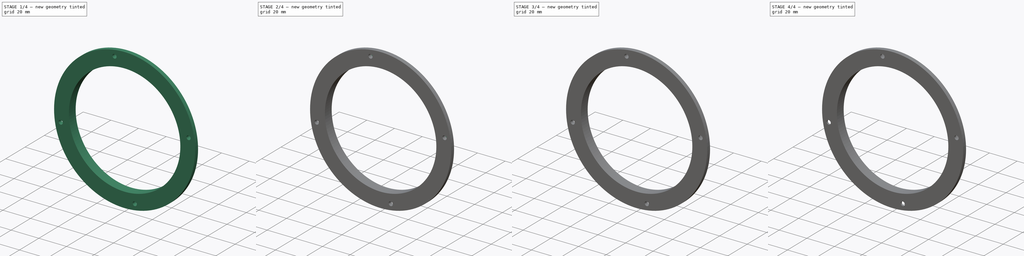
[diagram: build sequence overview — one tinted view per stage of 4, left to right]
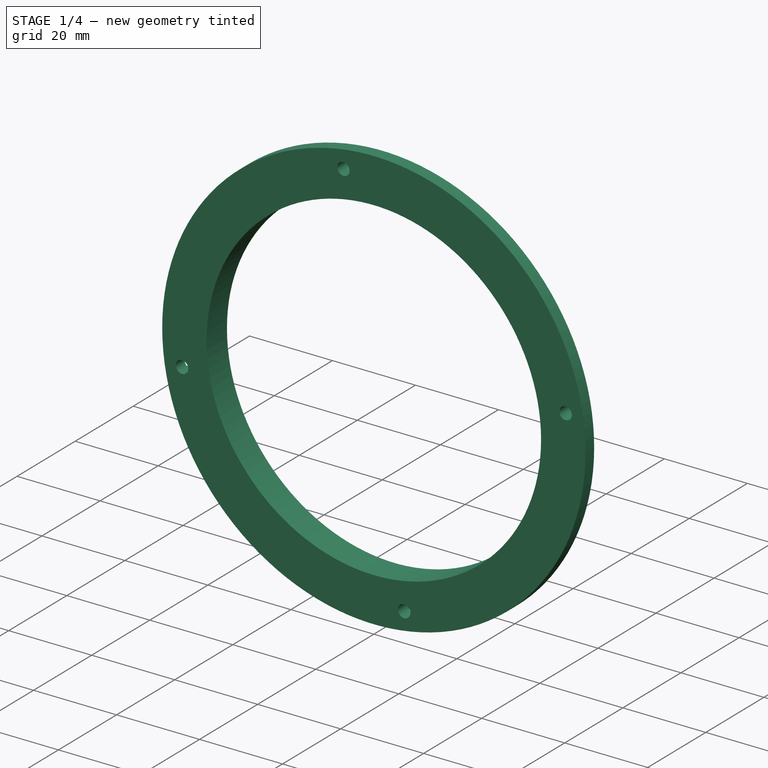
[diagram: stage 1 of 4 — iso view after this stage's code; geometry added in this stage tinted green]
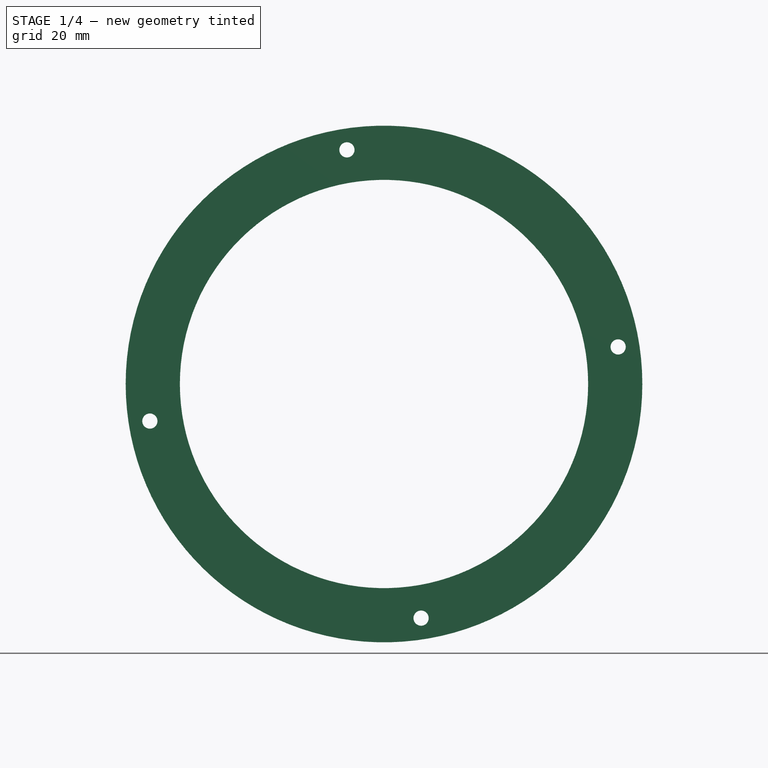
[diagram: stage 1 of 4 — front view after this stage's code; geometry added in this stage tinted green]
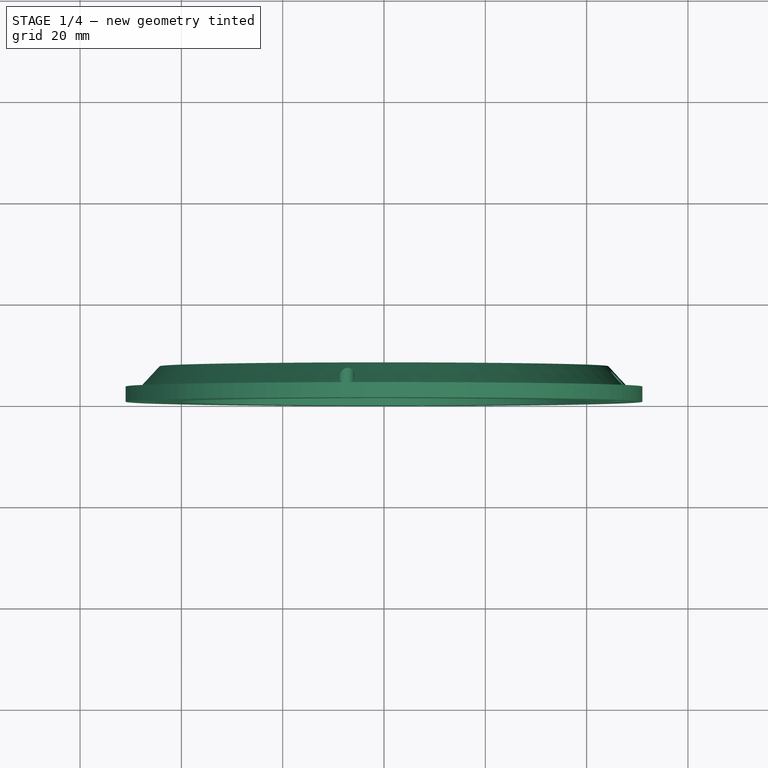
[diagram: stage 1 of 4 — top view after this stage's code; geometry added in this stage tinted green]
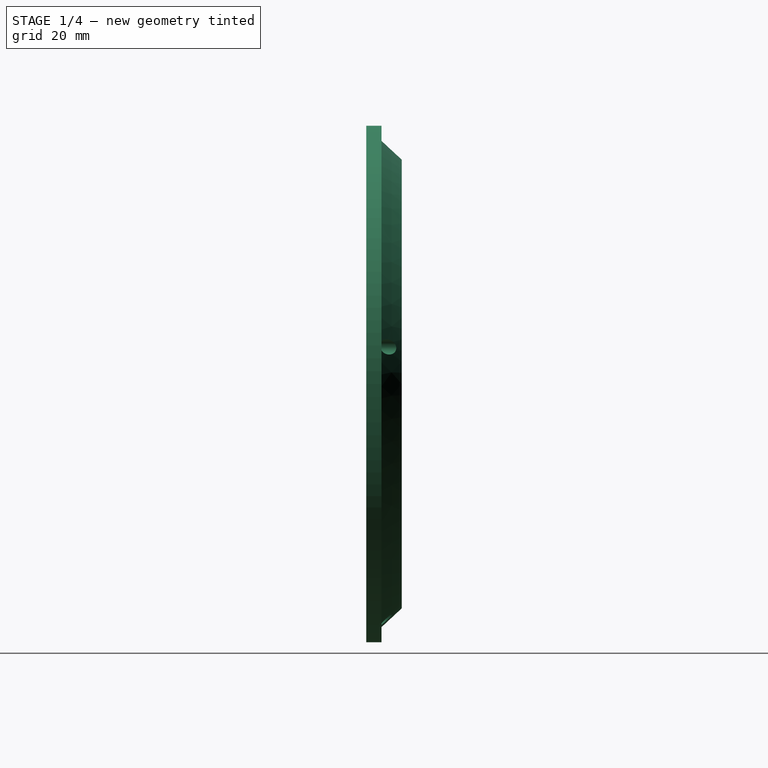
[diagram: stage 1 of 4 — right view after this stage's code; geometry added in this stage tinted green]
FCSTD DOCUMENT  (FreeCAD 0.16R6706 (Git))
Label: EndStopSensorMount
License: All rights reserved
LicenseURL: http://en.wikipedia.org/wiki/All_rights_reserved
objects: Sketcher::SketchObject×5, PartDesign::Pocket×4, PartDesign::PolarPattern×4, PartDesign::Chamfer×4, PartDesign::Revolution×1
note: 23 computed .brp shape members not serialized (recipe doc carries the construction recipe); baked Part::Feature solids carry a one-line shape summary decoded from their .brp

FEATURE [Sketcher::SketchObject] Sketch
  sketch-geometry (6):
    g0: LineSegment StartX=51 StartY=3 StartZ=0 EndX=51 EndY=0 EndZ=0
    g1: LineSegment StartX=51 StartY=0 StartZ=0 EndX=40.3 EndY=0 EndZ=0
    g2: LineSegment StartX=40.3 StartY=0 StartZ=0 EndX=40.3 EndY=7 EndZ=0
    g3: LineSegment StartX=40.3 StartY=7 StartZ=0 EndX=44.3 EndY=7 EndZ=0
    g4: LineSegment StartX=44.3 StartY=7 StartZ=0 EndX=48 EndY=3 EndZ=0
    g5: LineSegment StartX=48 StartY=3 StartZ=0 EndX=51 EndY=3 EndZ=0
  constraints (18):
    c: Coincident(g1,g2)
    c: Horizontal(g1)
    c: Vertical(g0)
    c: Vertical(g2)
    c: PointOnObject(g0,g-1)
    c: Coincident(g2,g3)
    c: Coincident(g3,g4)
    c: Coincident(g4,g5)
    c: Coincident(g5,g0)
    c: DistanceY(g1,g2) = 7
    c: Horizontal(g3)
    c: Coincident(g1,g0)
    c: DistanceY(g0,g0) = 3
    c: Horizontal(g5)
    c: DistanceX(g2,g3) = 4
    c: DistanceX(g-1,g0) = 51
    c: DistanceX(g1,g0) = 10.7
    c: DistanceX(g4,g0) = 3
FEATURE [PartDesign::Revolution] Revolution
  Angle = 360
  Axis = (0,1,0)
  Base = (0,0,0)
  Midplane = true
  ReferenceAxis = -> Sketch [V_Axis]
  Sketch = -> Sketch
FEATURE [Sketcher::SketchObject] Sketch001
  Placement = pos=(0,0,0) rot=(1,0,0;1.5708rad)
  Support = -> Revolution [Face2]
  sketch-geometry (4):
    g0: Circle CenterX=46.2238 CenterY=7.32113 CenterZ=0 NormalX=0 NormalY=0 NormalZ=1 Radius=1.5
    g1: Circle [constr] CenterX=46.8 CenterY=0 CenterZ=0 NormalX=0 NormalY=0 NormalZ=1 Radius=1.5
    g2: LineSegment [constr] StartX=0 StartY=0 StartZ=0 EndX=46.2238 EndY=7.32113 EndZ=0
    g3: LineSegment [constr] StartX=0 StartY=0 StartZ=0 EndX=46.8 EndY=0 EndZ=0
  constraints (10):
    c: Coincident(g2,g-1)
    c: Coincident(g2,g0)
    c: Distance(g-1,g0) = 46.8
    c: Coincident(g3,g-1)
    c: Coincident(g3,g1)
    c: Equal(g0,g1)
    c: Radius(g0) = 1.5
    c: Equal(g2,g3)
    c: Angle(g3,g2) = 0.15708
    c: PointOnObject(g1,g-1)
FEATURE [PartDesign::Pocket] Pocket
  Length = 5
  Sketch = -> Sketch001
  Type = 1
FEATURE [PartDesign::PolarPattern] PolarPattern
  Angle = 360
  Axis = -> Sketch001 [N_Axis]
  Occurrences = 4
  Originals = -> [Pocket]
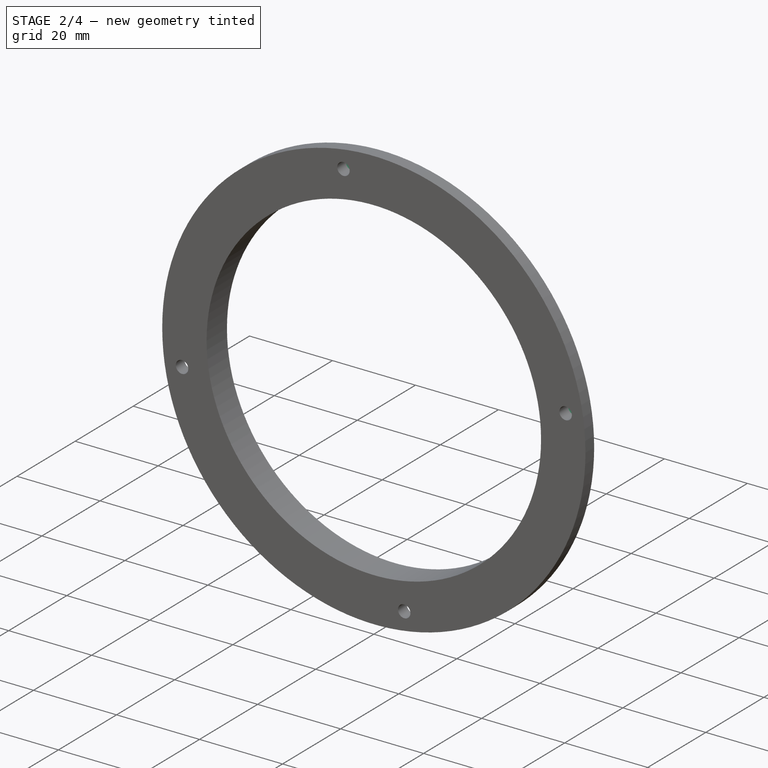
[diagram: stage 2 of 4 — iso view after this stage's code; geometry added in this stage tinted green]
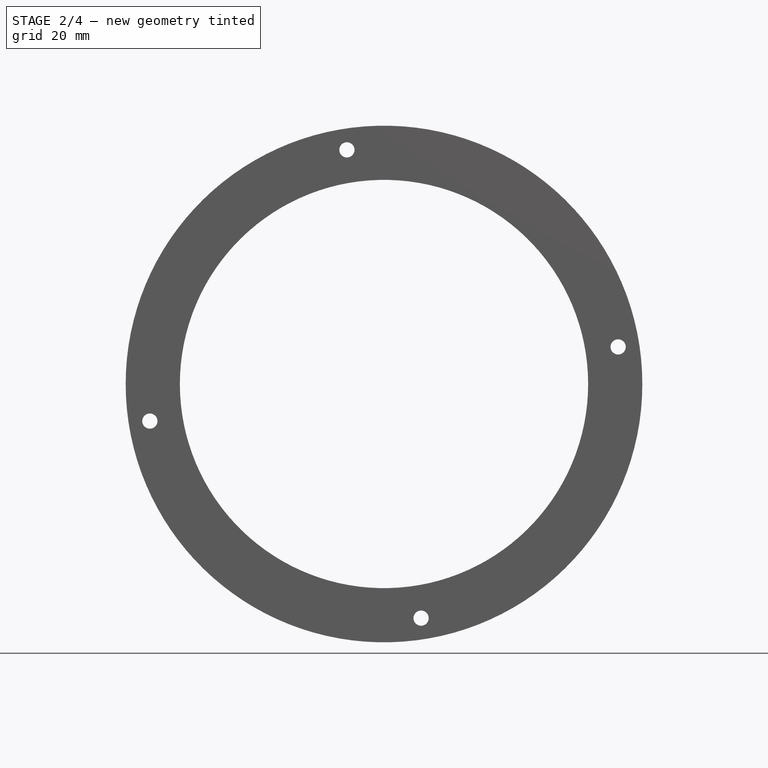
[diagram: stage 2 of 4 — front view after this stage's code; geometry added in this stage tinted green]
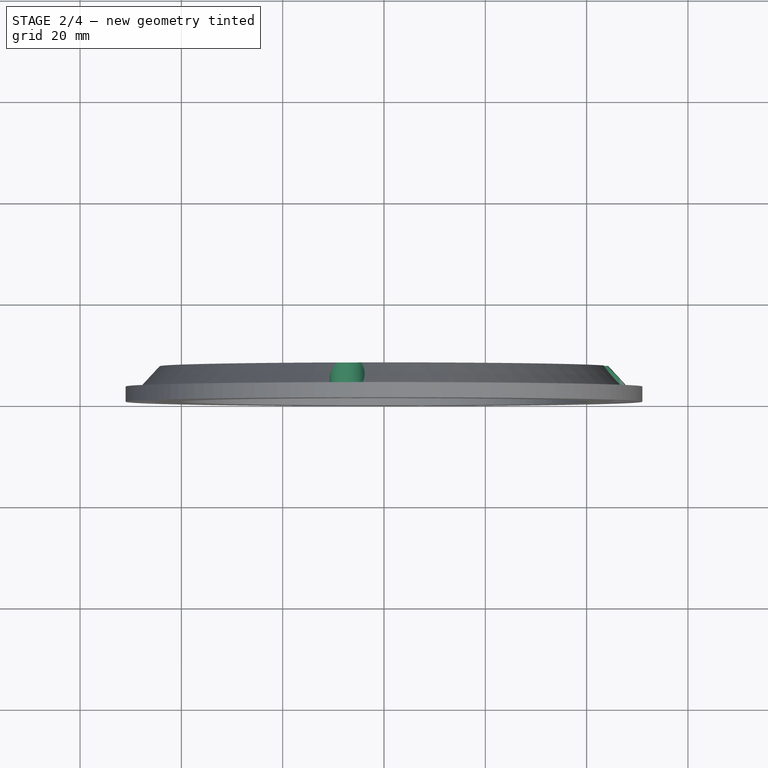
[diagram: stage 2 of 4 — top view after this stage's code; geometry added in this stage tinted green]
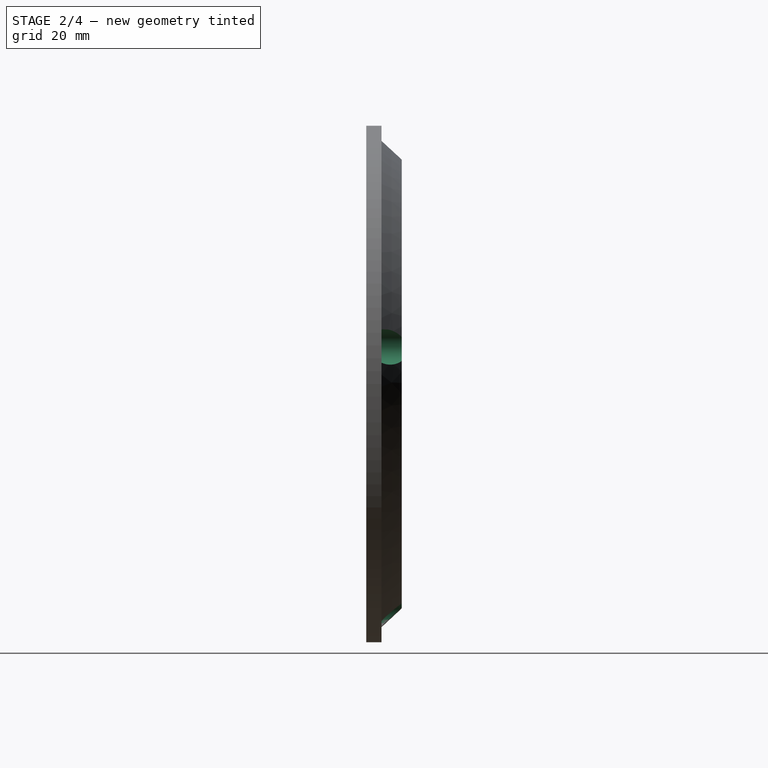
[diagram: stage 2 of 4 — right view after this stage's code; geometry added in this stage tinted green]
FEATURE [Sketcher::SketchObject] Sketch002
  Placement = pos=(0,7,0) rot=(0,0.707107,0.707107;3.14159rad)
  Support = -> PolarPattern [Face10]
  sketch-geometry (4):
    g0: Circle CenterX=-46.2238 CenterY=7.32113 CenterZ=0 NormalX=0 NormalY=0 NormalZ=1 Radius=3.5
    g1: Circle [constr] CenterX=-46.8 CenterY=0 CenterZ=0 NormalX=0 NormalY=0 NormalZ=1 Radius=3.5
    g2: LineSegment [constr] StartX=-46.2238 StartY=7.32113 StartZ=0 EndX=0 EndY=0 EndZ=0
    g3: LineSegment [constr] StartX=-46.8 StartY=0 StartZ=0 EndX=0 EndY=0 EndZ=0
  constraints (10):
    c: Radius(g1) = 3.5
    c: Equal(g1,g0)
    c: Coincident(g2,g0)
    c: Coincident(g2,g-1)
    c: Coincident(g3,g1)
    c: Coincident(g3,g-1)
    c: Distance(g3) = 46.8
    c: Angle(g2,g3) = 0.15708
    c: PointOnObject(g1,g-1)
    c: Distance(g-1,g0) = 46.8
FEATURE [PartDesign::Pocket] Pocket001
  Length = 4
  Sketch = -> Sketch002
  Type = 0
FEATURE [PartDesign::PolarPattern] PolarPattern001
  Angle = 360
  Axis = -> Sketch002 [N_Axis]
  Occurrences = 4
  Originals = -> [Pocket001]
FEATURE [Sketcher::SketchObject] Sketch003
  Placement = pos=(0,7,0) rot=(0,0.707107,0.707107;3.14159rad)
  Support = -> PolarPattern001 [Face20]
  sketch-geometry (4):
    g0: LineSegment StartX=-43.2 StartY=2.15 StartZ=0 EndX=-41.5 EndY=2.15 EndZ=0
    g1: LineSegment StartX=-41.5 StartY=2.15 StartZ=0 EndX=-41.5 EndY=-2.15 EndZ=0
    g2: LineSegment StartX=-41.5 StartY=-2.15 StartZ=0 EndX=-43.2 EndY=-2.15 EndZ=0
    g3: LineSegment StartX=-43.2 StartY=-2.15 StartZ=0 EndX=-43.2 EndY=2.15 EndZ=0
  constraints (12):
    c: Coincident(g0,g1)
    c: Coincident(g1,g2)
    c: Coincident(g2,g3)
    c: Coincident(g3,g0)
    c: Horizontal(g0)
    c: Horizontal(g2)
    c: Vertical(g1)
    c: Vertical(g3)
    c: Symmetric(g0,g1,g-1)
    c: DistanceX(g1,g-1) = 41.5
    c: DistanceY(g1,g0) = 4.3
    c: DistanceX(g2,g1) = 1.7
FEATURE [PartDesign::Pocket] Pocket002
  Length = 5
  Sketch = -> Sketch003
  Type = 0
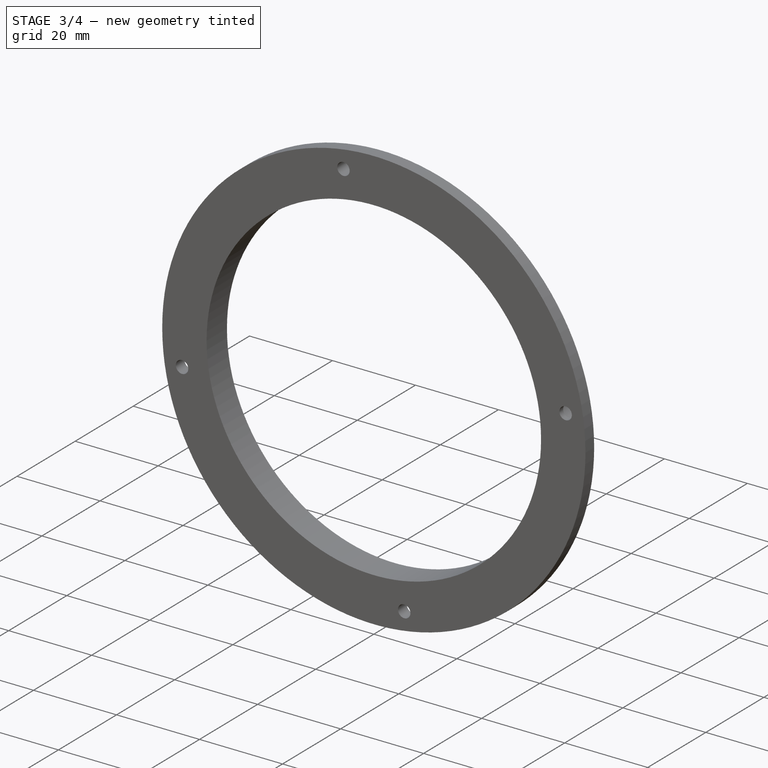
[diagram: stage 3 of 4 — iso view after this stage's code; geometry added in this stage tinted green]
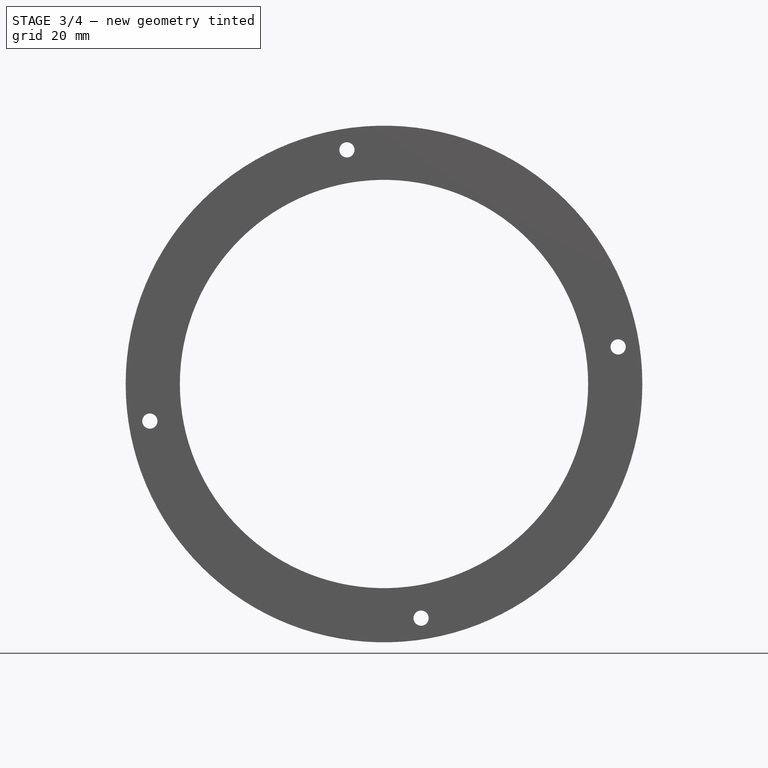
[diagram: stage 3 of 4 — front view after this stage's code; geometry added in this stage tinted green]
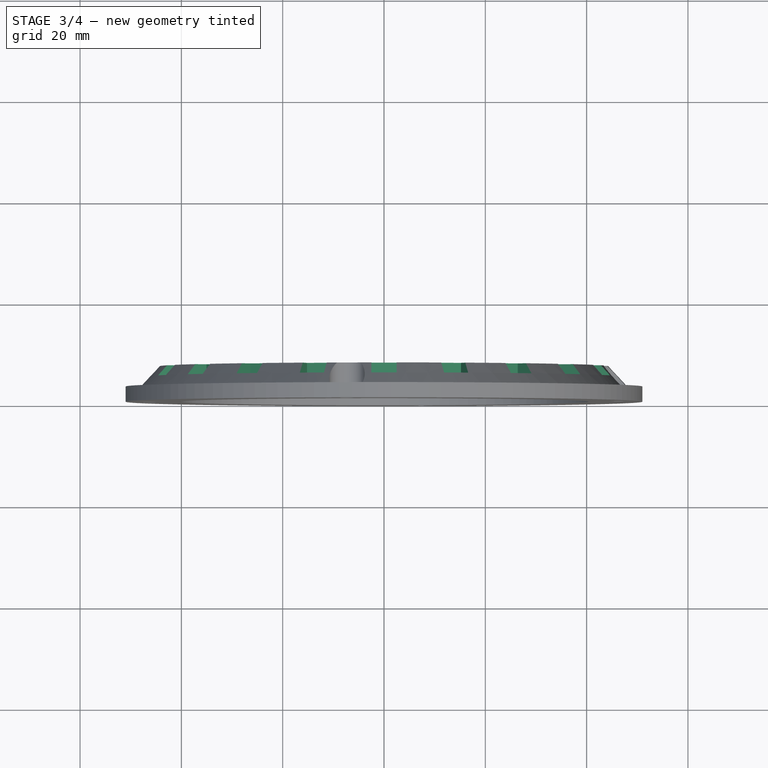
[diagram: stage 3 of 4 — top view after this stage's code; geometry added in this stage tinted green]
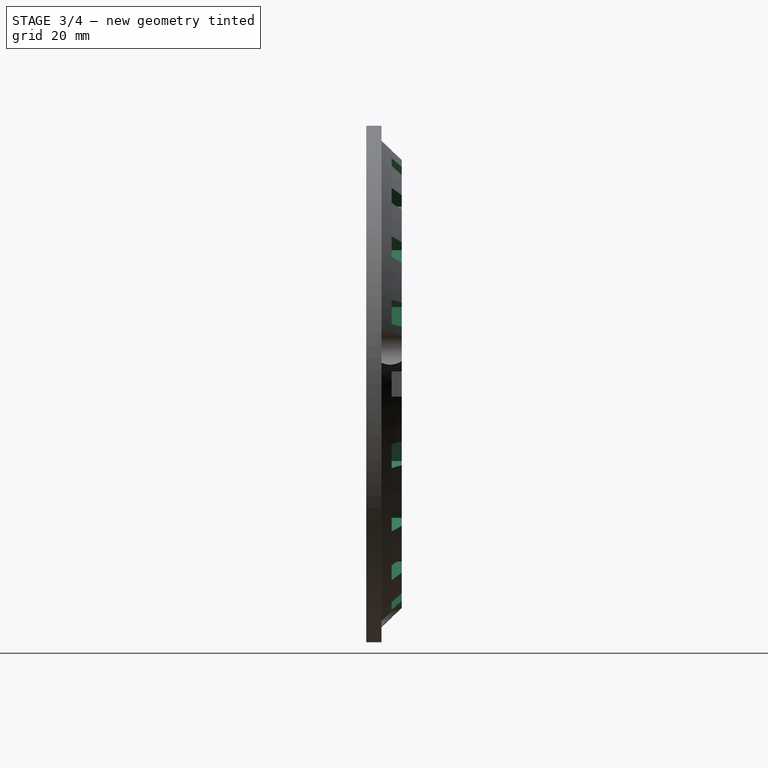
[diagram: stage 3 of 4 — right view after this stage's code; geometry added in this stage tinted green]
FEATURE [PartDesign::PolarPattern] PolarPattern002
  Angle = 360
  Axis = -> Sketch003 [N_Axis]
  Occurrences = 20
  Originals = -> [Pocket002]
FEATURE [Sketcher::SketchObject] Sketch004
  Placement = pos=(0,7,0) rot=(0,0.707107,0.707107;3.14159rad)
  Support = -> PolarPattern002 [Face20]
  sketch-geometry (4):
    g0: LineSegment StartX=-41.5 StartY=2.5 StartZ=0 EndX=-53.5 EndY=2.5 EndZ=0
    g1: LineSegment StartX=-53.5 StartY=2.5 StartZ=0 EndX=-53.5 EndY=-2.5 EndZ=0
    g2: LineSegment StartX=-53.5 StartY=-2.5 StartZ=0 EndX=-41.5 EndY=-2.5 EndZ=0
    g3: LineSegment StartX=-41.5 StartY=-2.5 StartZ=0 EndX=-41.5 EndY=2.5 EndZ=0
  constraints (12):
    c: Coincident(g0,g1)
    c: Coincident(g1,g2)
    c: Coincident(g2,g3)
    c: Coincident(g3,g0)
    c: Horizontal(g0)
    c: Horizontal(g2)
    c: Vertical(g1)
    c: Vertical(g3)
    c: Symmetric(g2,g0,g-1)
    c: DistanceX(g0,g-1) = 41.5
    c: DistanceX(g0,g0) = 12
    c: DistanceY(g2,g0) = 5
FEATURE [PartDesign::Pocket] Pocket003
  Length = 2
  Sketch = -> Sketch004
  Type = 0
FEATURE [PartDesign::PolarPattern] PolarPattern003
  Angle = 360
  Axis = -> Sketch004 [N_Axis]
  Occurrences = 20
  Originals = -> [Pocket003]
FEATURE [PartDesign::Chamfer] Chamfer
  Base = -> PolarPattern003 [Edge135]
  Size = 1.7
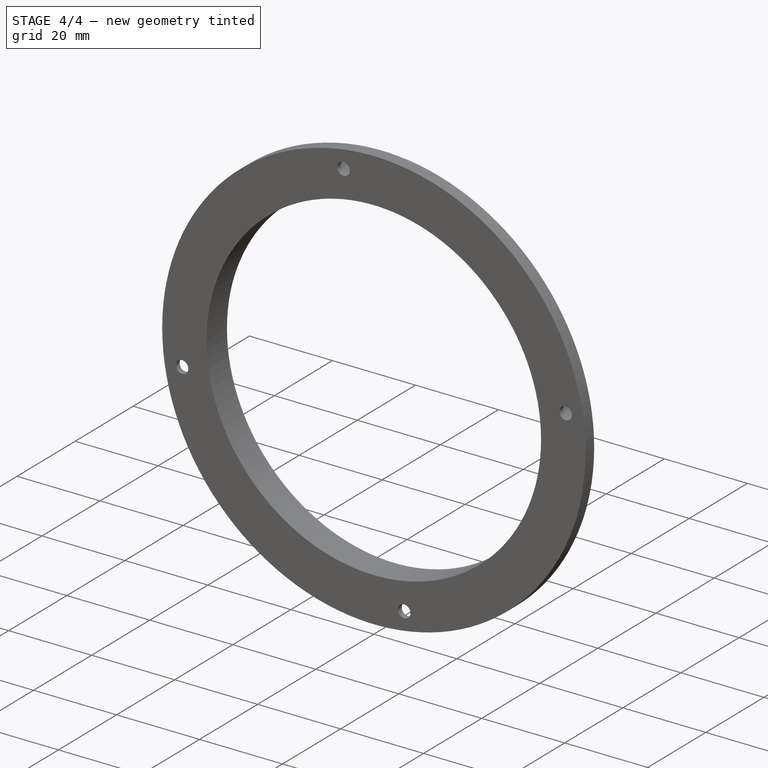
[diagram: stage 4 of 4 — iso view after this stage's code; geometry added in this stage tinted green]
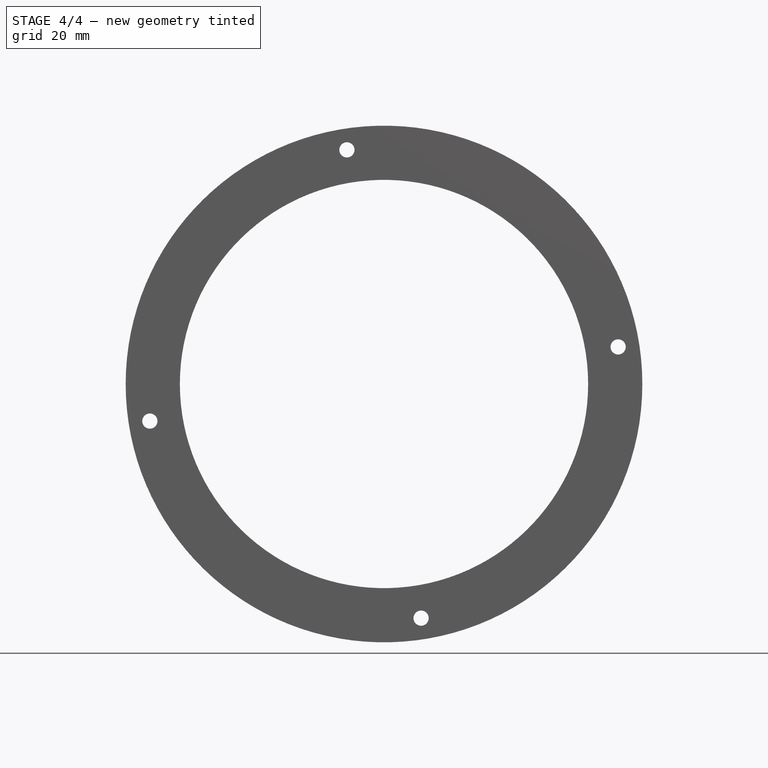
[diagram: stage 4 of 4 — front view after this stage's code; geometry added in this stage tinted green]
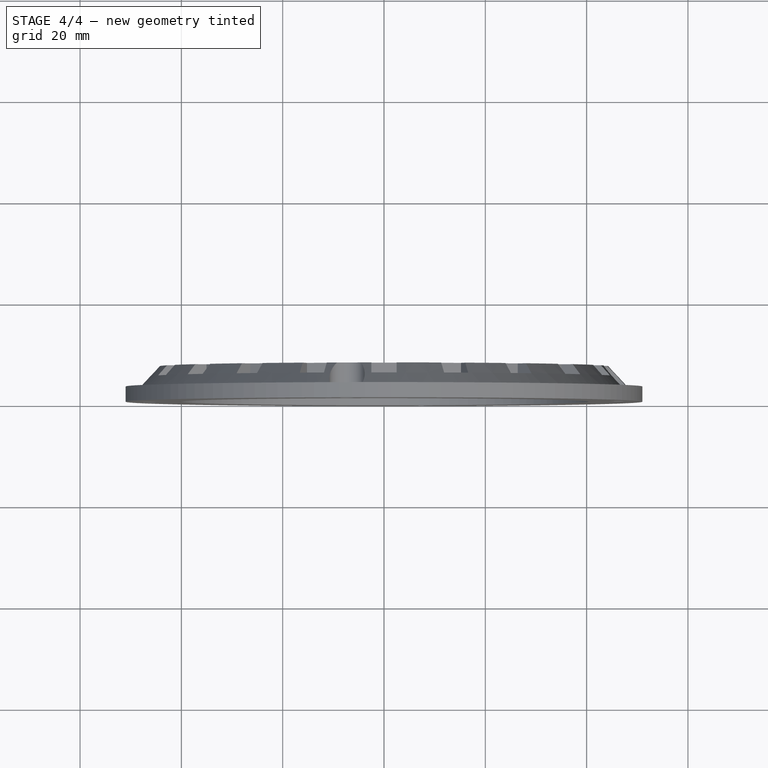
[diagram: stage 4 of 4 — top view after this stage's code; geometry added in this stage tinted green]
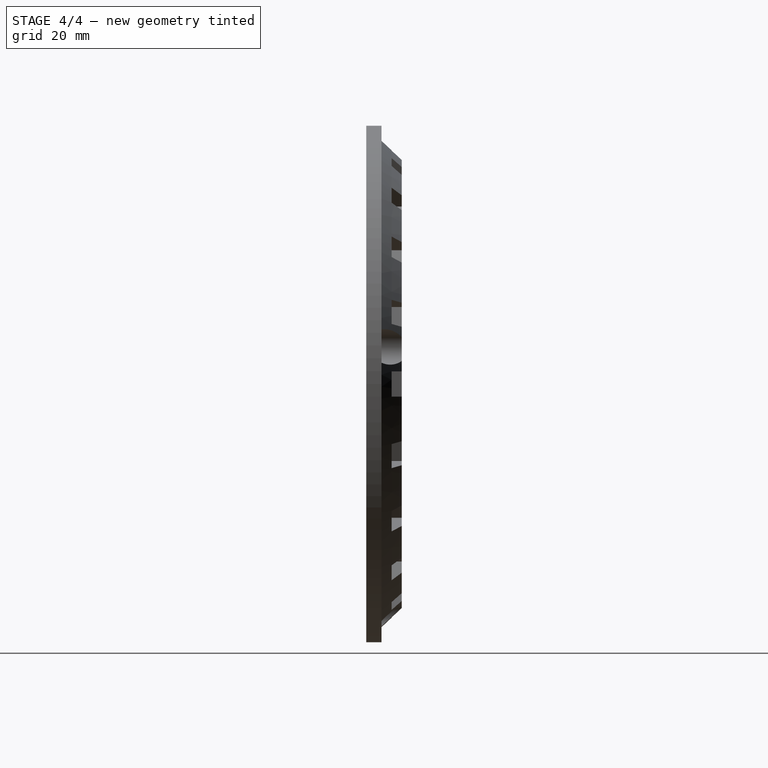
[diagram: stage 4 of 4 — right view after this stage's code; geometry added in this stage tinted green]
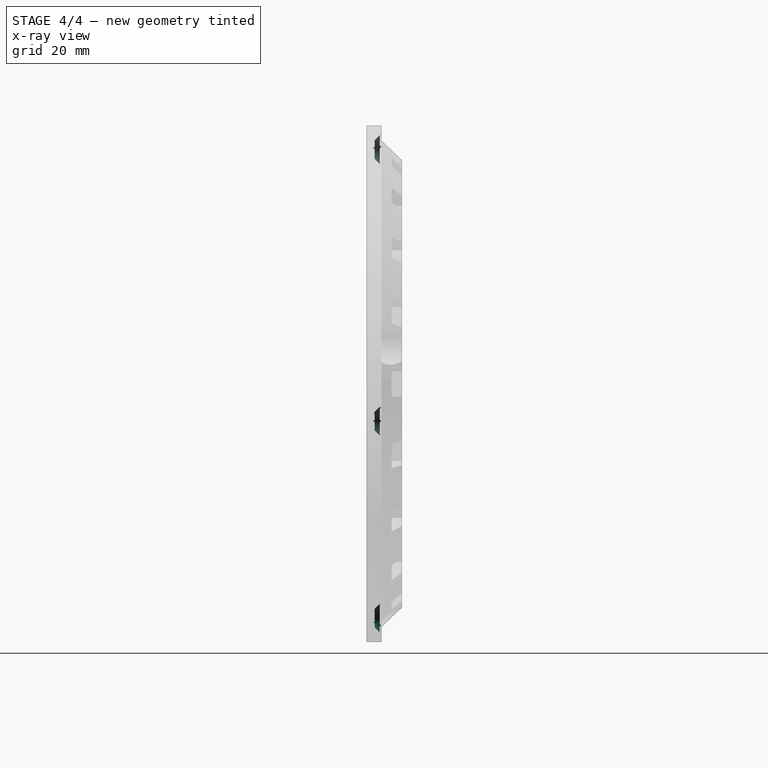
[diagram: stage 4 of 4 — x-ray composite at the right view; earlier geometry ghosted, this stage's added geometry solid]
FEATURE [PartDesign::Chamfer] Chamfer001
  Base = -> Chamfer [Edge296]
  Size = 1.7
FEATURE [PartDesign::Chamfer] Chamfer002
  Base = -> Chamfer001 [Edge343]
  Size = 1.7
FEATURE [PartDesign::Chamfer] Chamfer003
  Base = -> Chamfer002 [Edge397]
  Size = 1.7
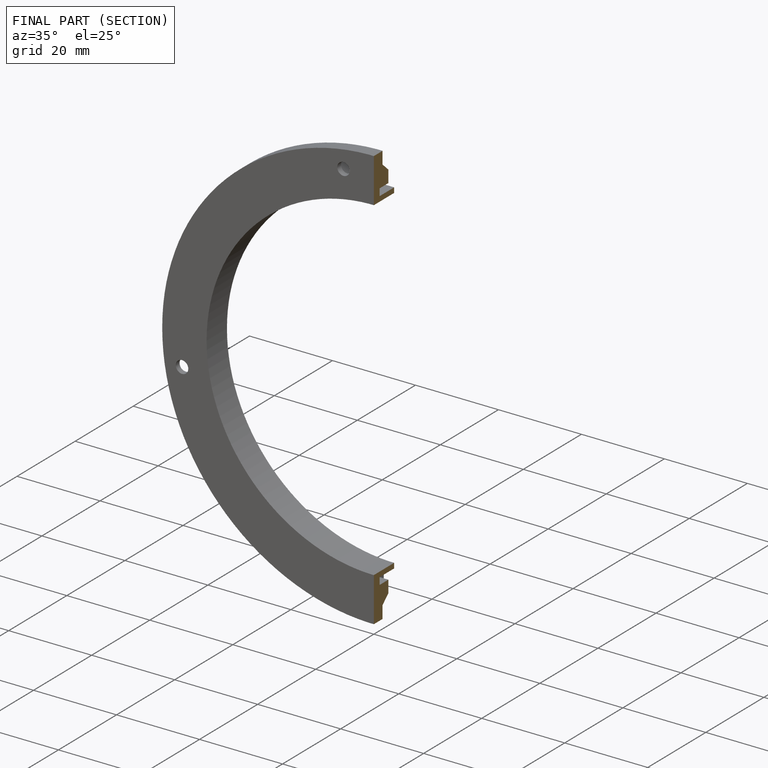
[diagram: finished part — half-section view (interior)]
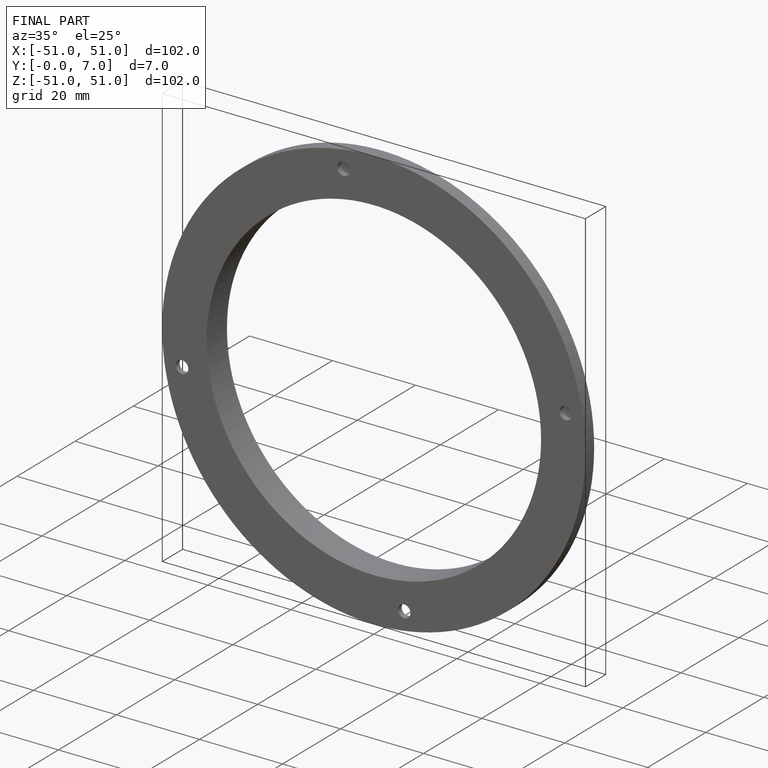
[diagram: finished part — iso view with bounding-box wireframe]
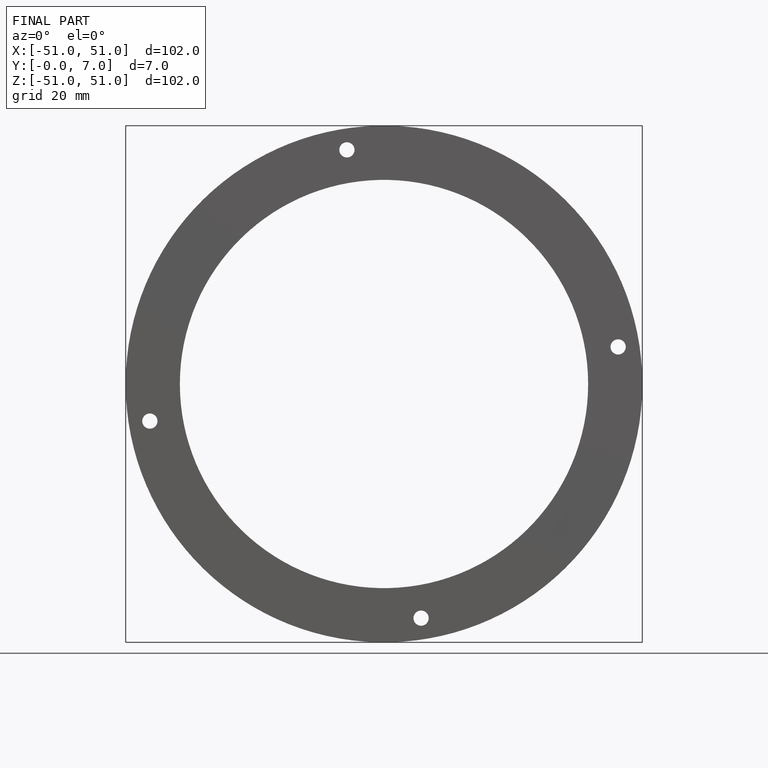
[diagram: finished part — front view with bounding-box wireframe]
